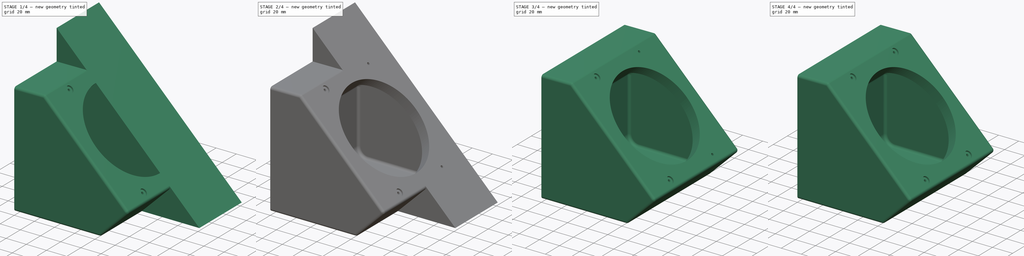
[diagram: build sequence overview — one tinted view per stage of 4, left to right]
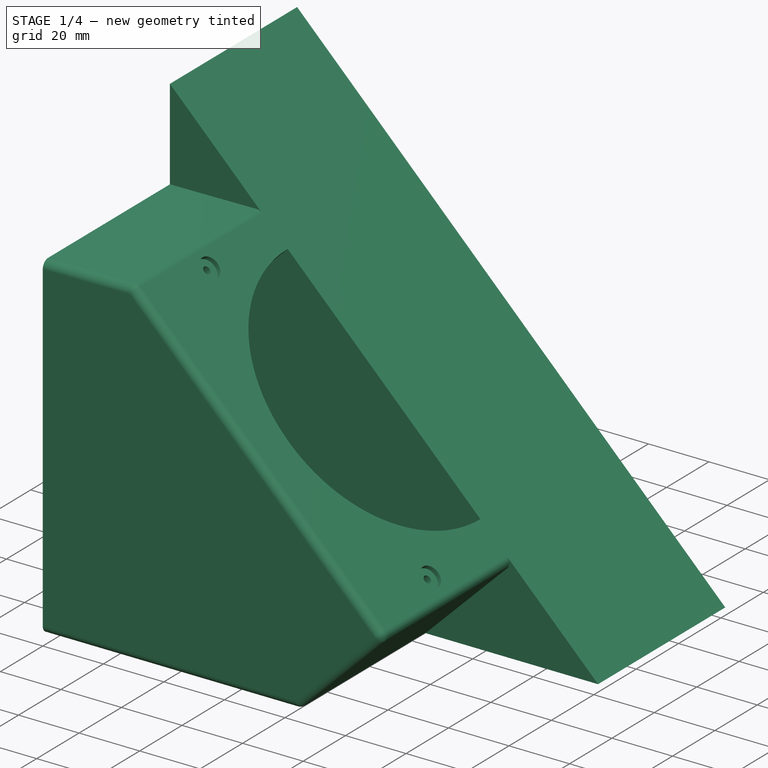
[diagram: stage 1 of 4 — iso view after this stage's code; geometry added in this stage tinted green]
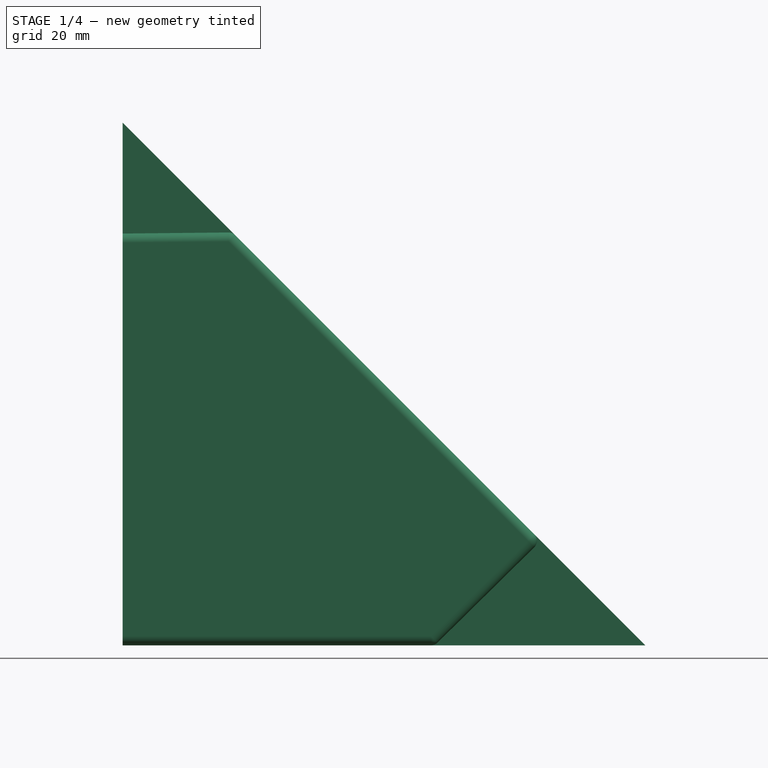
[diagram: stage 1 of 4 — front view after this stage's code; geometry added in this stage tinted green]
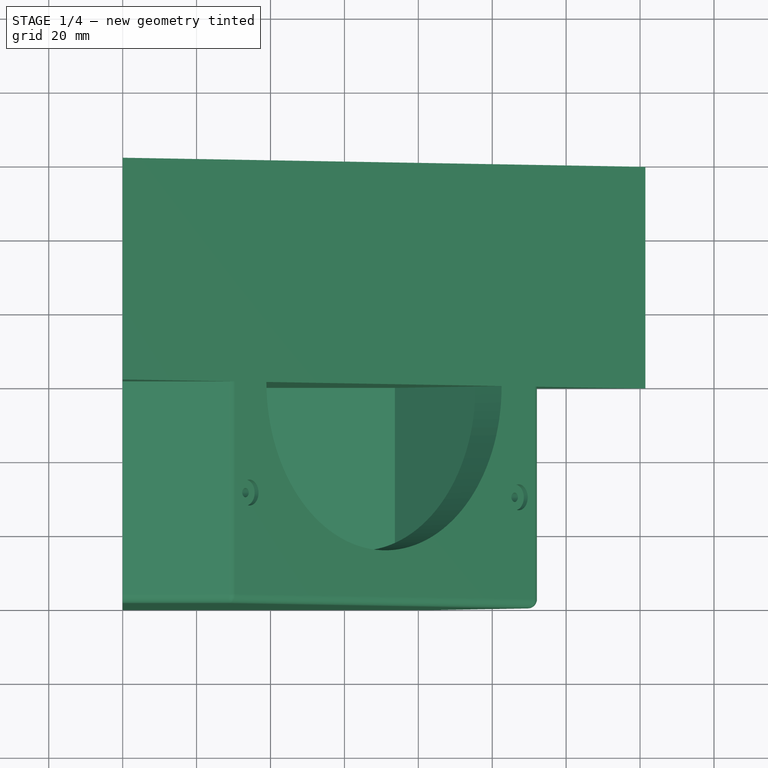
[diagram: stage 1 of 4 — top view after this stage's code; geometry added in this stage tinted green]
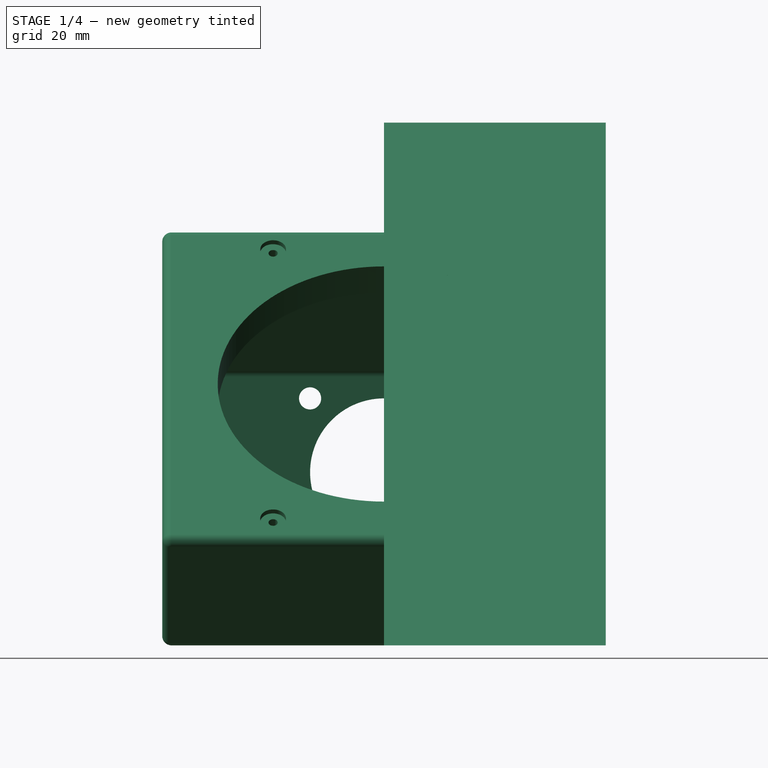
[diagram: stage 1 of 4 — right view after this stage's code; geometry added in this stage tinted green]
FCSTD DOCUMENT  (FreeCAD 0.21R33771 (Git))
Label: gmi20d
License: All rights reserved
LicenseURL: http://en.wikipedia.org/wiki/All_rights_reserved
objects: Sketcher::SketchObject×5, PartDesign::Pocket×4, PartDesign::Fillet×3, PartDesign::Chamfer×2, PartDesign::Pad×1, PartDesign::Body×1, Part::Feature×1, Part::Mirroring×1, Part::FeaturePython×1
note: 29 computed .brp shape members not serialized (recipe doc carries the construction recipe); baked Part::Feature solids carry a one-line shape summary decoded from their .brp

FEATURE [Sketcher::SketchObject] Sketch  label="outside"
  FullyConstrained = true
  MapMode = 5
  Placement = pos=(0,0,0) rot=(1,0,0;1.5708rad)
  Support = -> [XZ_Plane001]
  expr: Constraints[8] = .Constraints.fulfront / 2
  sketch-geometry (7):
    g0: LineSegment StartX=0 StartY=0 StartZ=0 EndX=0 EndY=141.421 EndZ=0
    g1: LineSegment StartX=0 StartY=141.421 StartZ=0 EndX=70.7107 EndY=70.7107 EndZ=0
    g2: LineSegment StartX=70.7107 StartY=70.7107 StartZ=0 EndX=141.421 EndY=0 EndZ=0
    g3: LineSegment StartX=70.7107 StartY=70.7107 StartZ=0 EndX=0 EndY=0 EndZ=0
    g4: LineSegment StartX=141.421 StartY=0 StartZ=0 EndX=70.7107 EndY=0 EndZ=0
    g5: LineSegment StartX=70.7107 StartY=0 StartZ=0 EndX=0 EndY=0 EndZ=0
    g6: LineSegment StartX=70.7107 StartY=70.7107 StartZ=0 EndX=70.7107 EndY=0 EndZ=0
  constraints (20):
    c: Coincident(g-1,g0)
    c: PointOnObject(g0,g-2)
    c: Coincident(g0,g1)
    c: PointOnObject(g2,g-1)
    c: Coincident(g2,g4)
    c: Coincident(g5,g0)
    c: Coincident(g1,g2)
    c: Distance(g1,g2) = 200  'fulfront'
    c: Distance(g2) = 100
    c: Coincident(g3,g1)
    c: Coincident(g3,g0)
    c: Distance(g3) = 100
    c: Coincident(g4,g5)
    c: DistanceX(g5,g5) = 70.7107
    c: Coincident(g6,g1)
    c: Coincident(g6,g4)
    c: Vertical(g6)
    c: Horizontal(g5)
    c: Parallel(g1,g2)
    c: Angle(g2,g4) = 0.785398  'angle'
FEATURE [PartDesign::Pad] Pad
  Direction = (0,-1,-2e-16)
  Length = 60
  Length2 = 10
  Placement = pos=(0,0,0) rot=(1,0,0;1.5708rad)
  Profile = -> Sketch
  ReferenceAxis = -> Sketch [N_Axis]
  Refine = true
  Reversed = true
  Type = 0
FEATURE [PartDesign::Body] Body
  Group = -> [Sketch,Pad,Sketch001,Pocket,Sketch002,Pocket001,Sketch003,Pocket002,Chamfer,Chamfer001,Fillet,Fillet001,Fillet002,Sketch004,Pocket003]
  Origin = -> Origin001
  Tip = -> Pocket003
FEATURE [Part::Feature] Pocket004
  Placement = pos=(0,0,0) rot=(1,0,0;1.5708rad)
  shape: bbox 112.1 x 60 x 111.7 mm, 45 faces (baked)
FEATURE [Part::Mirroring] Part__Mirroring  label="Pocket004 (Mirror #1)"
  Base = (0,0,0)
  Normal = (0,1,0)
  Source = -> Pocket004
FEATURE [Part::FeaturePython] Connect  # WARN: FeaturePython — macro-defined, semantics opaque (R4)
  Objects = -> [Pocket004,Part__Mirroring]
  Refine = true
  Tolerance = 0
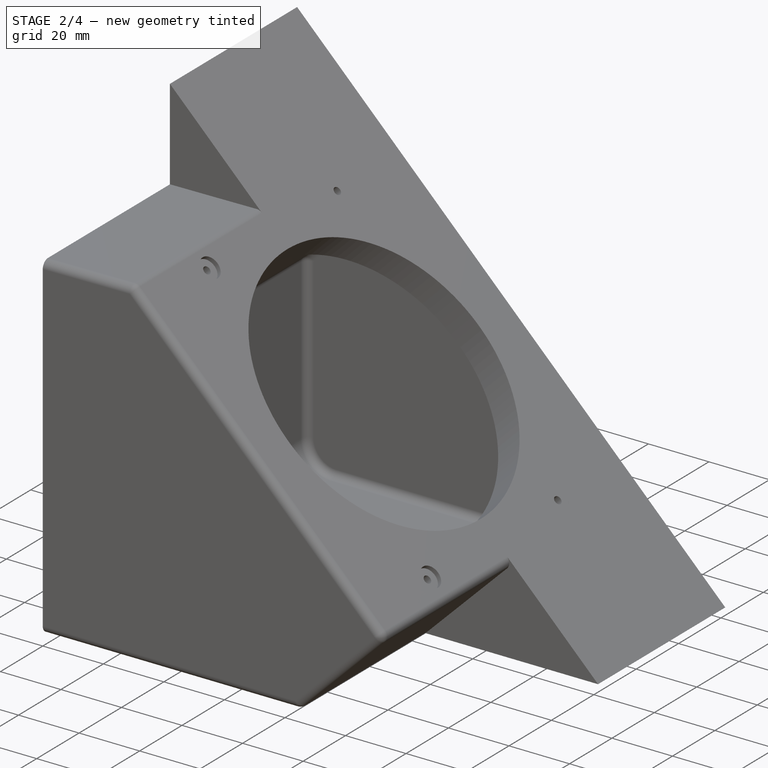
[diagram: stage 2 of 4 — iso view after this stage's code; geometry added in this stage tinted green]
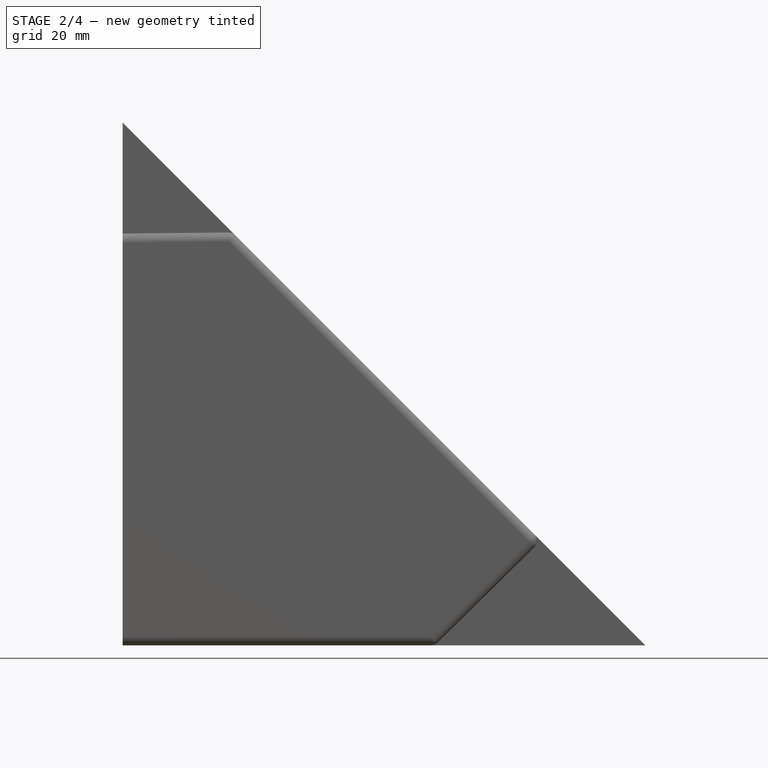
[diagram: stage 2 of 4 — front view after this stage's code; geometry added in this stage tinted green]
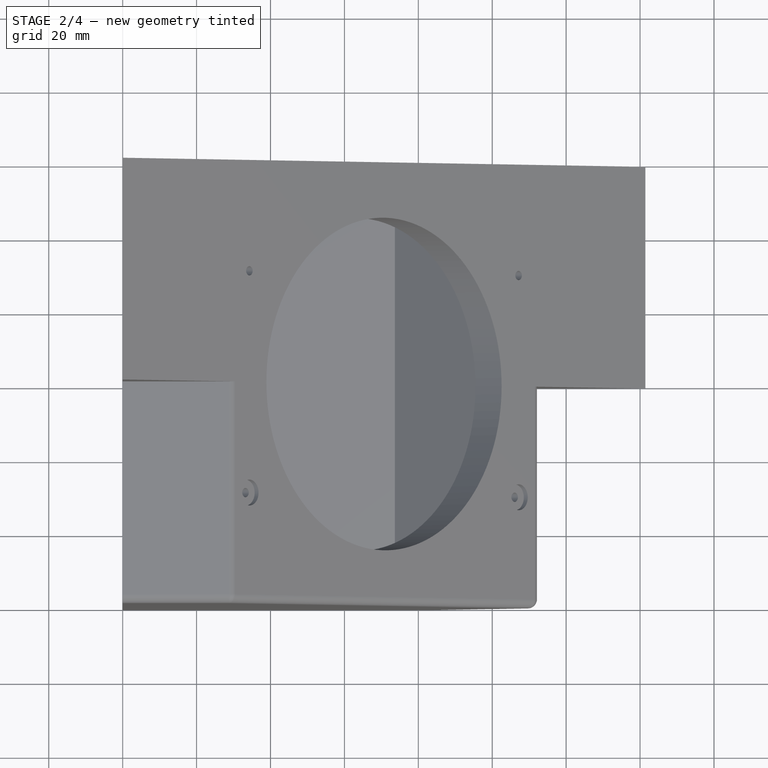
[diagram: stage 2 of 4 — top view after this stage's code; geometry added in this stage tinted green]
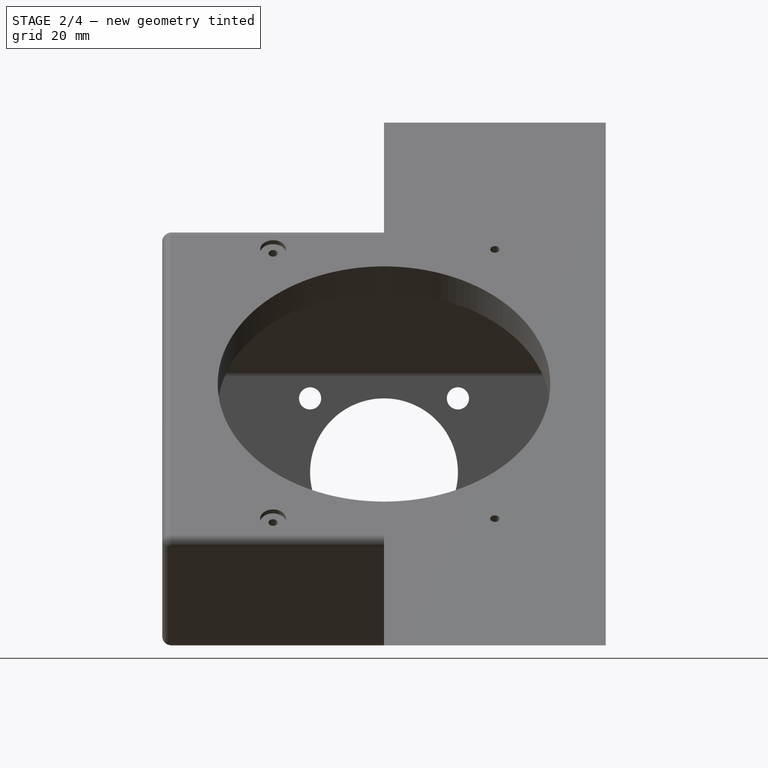
[diagram: stage 2 of 4 — right view after this stage's code; geometry added in this stage tinted green]
FEATURE [Sketcher::SketchObject] Sketch001  label="inside"
  ExternalGeometry = -> [Sketch]
  FullyConstrained = true
  MapMode = 5
  Placement = pos=(0,0,0) rot=(1,0,0;1.5708rad)
  Support = -> [XZ_Plane001]
  expr: Constraints[14] = .Constraints.wand
  expr: Constraints[19] = .Constraints.wand
  sketch-geometry (9):
    g0: LineSegment StartX=10 StartY=20 StartZ=0 EndX=10 EndY=73.6396 EndZ=0
    g1: LineSegment StartX=31.8198 StartY=95.4594 StartZ=0 EndX=95.4594 EndY=31.8198 EndZ=0
    g2: LineSegment StartX=73.6396 StartY=10 StartZ=0 EndX=20 EndY=10 EndZ=0
    g3: ArcOfCircle CenterX=20 CenterY=20 CenterZ=0 NormalX=0 NormalY=0 NormalZ=1 AngleXU=0 Radius=10 StartAngle=3.14159 EndAngle=4.71239
    g4: LineSegment StartX=20 StartY=10 StartZ=0 EndX=20 EndY=0 EndZ=0
    g5: LineSegment StartX=10 StartY=20 StartZ=0 EndX=0 EndY=20 EndZ=0
    g6: LineSegment StartX=31.8198 StartY=95.4594 StartZ=0 EndX=38.8909 EndY=102.53 EndZ=0
    g7: LineSegment StartX=10 StartY=73.6396 StartZ=0 EndX=31.8198 EndY=95.4594 EndZ=0
    g8: LineSegment StartX=95.4594 StartY=31.8198 StartZ=0 EndX=73.6396 EndY=10 EndZ=0
  constraints (28):
    c: Vertical(g0)
    c: Horizontal(g2)
    c: Parallel(g-3,g1)
    c: Angle(g1,g2) = 0.785398  'angle'
    c: Tangent(g0,g3) = 1.5708
    c: Tangent(g2,g3) = 1.5708
    c: Radius(g3) = 10
    c: Coincident(g4,g2)
    c: PointOnObject(g4,g-1)
    c: Vertical(g4)
    c: DistanceY(g4,g4) = 10  'wand'
    c: Coincident(g5,g0)
    c: PointOnObject(g5,g-2)
    c: Horizontal(g5)
    c: DistanceX(g5,g5) = 10
    c: Coincident(g6,g1)
    c: PointOnObject(g6,g-3)
    c: Distance(g-3) = 100
    c: Perpendicular(g6,g-3)
    c: Distance(g6) = 10
    c: Distance(g1) = 90
    c: Coincident(g7,g0)
    c: Coincident(g7,g1)
    c: Perpendicular(g7,g1)
    c: Coincident(g8,g1)
    c: Coincident(g8,g2)
    c: Perpendicular(g8,g1)
    c: Equal(g8,g7)
FEATURE [PartDesign::Pocket] Pocket
  BaseFeature = -> Pad
  Direction = (0,1,2e-16)
  Length = 50
  Length2 = 5
  Placement = pos=(0,0,0) rot=(1,0,0;1.5708rad)
  Profile = -> Sketch001
  ReferenceAxis = -> Sketch001 [N_Axis]
  Refine = true
  Type = 0
FEATURE [Sketcher::SketchObject] Sketch002  label="devhole"
  FullyConstrained = true
  MapMode = 5
  Placement = pos=(70.7107,-2.11e-14,70.7107) rot=(0.382683,0,0.92388;3.14159rad)
  Support = -> [Pocket]
  expr: Constraints[5] = .Constraints.di
  expr: Constraints[6] = .Constraints.wb
  expr: Constraints[7] = .Constraints.wa
  sketch-geometry (3):
    g0: Circle CenterX=0 CenterY=0 CenterZ=0 NormalX=0 NormalY=0 NormalZ=1 AngleXU=0 Radius=45
    g1: Circle CenterX=51.5 CenterY=-30 CenterZ=0 NormalX=0 NormalY=0 NormalZ=1 AngleXU=0 Radius=1.25
    g2: Circle CenterX=-51.5 CenterY=-30 CenterZ=0 NormalX=0 NormalY=0 NormalZ=1 AngleXU=0 Radius=1.25
  constraints (8):
    c: Coincident(g0,g-1)
    c: Diameter(g0) = 90
    c: DistanceX(g0,g1) = 51.5  'wb'
    c: DistanceY(g1,g0) = 30  'wa'
    c: Diameter(g1) = 2.5  'di'
    c: Diameter(g2) = 2.5
    c: DistanceX(g2,g0) = 51.5
    c: DistanceY(g2,g0) = 30
FEATURE [PartDesign::Pocket] Pocket001
  BaseFeature = -> Pocket
  Direction = (-0.707107,2e-16,-0.707107)
  Length = 30
  Length2 = 5
  Placement = pos=(0,0,0) rot=(1,0,0;1.5708rad)
  Profile = -> Sketch002
  ReferenceAxis = -> Sketch002 [N_Axis]
  Refine = true
  Type = 0
FEATURE [Sketcher::SketchObject] Sketch003  label="backhole"
  ExternalGeometry = -> [Sketch001]
  FullyConstrained = true
  MapMode = 5
  Placement = pos=(0,0,0) rot=(0.57735,0.57735,0.57735;2.0944rad)
  Support = -> [YZ_Plane001]
  expr: Constraints[10] = .Constraints.wd
  expr: Constraints[11] = .Constraints.wd
  expr: Constraints[4] = .Constraints.length / 2
  expr: Constraints[6] = .Constraints.ds
  expr: Constraints[9] = .Constraints.wd
  sketch-geometry (3):
    g0: Circle CenterX=0 CenterY=46.8198 CenterZ=0 NormalX=0 NormalY=0 NormalZ=1 AngleXU=0 Radius=20
    g1: Circle CenterX=20 CenterY=66.8198 CenterZ=0 NormalX=0 NormalY=0 NormalZ=1 AngleXU=0 Radius=3
    g2: Circle CenterX=20 CenterY=26.8198 CenterZ=0 NormalX=0 NormalY=0 NormalZ=1 AngleXU=0 Radius=3
  constraints (12):
    c: PointOnObject(g0,g-2)
    c: DistanceY(g-3,g-3) = 53.6396  'length'
    c: DistanceX(g-3,g-3) = 0
    c: DistanceY(g-3) = 20
    c: DistanceY(g-3,g0) = 26.8198
    c: Diameter(g1) = 6  'ds'
    c: Diameter(g2) = 6
    c: Radius(g0) = 20  'rad'
    c: DistanceX(g-1,g1) = 20  'wd'
    c: DistanceX(g-1,g2) = 20
    c: DistanceY(g2,g0) = 20
    c: DistanceY(g0,g1) = 20
FEATURE [PartDesign::Pocket] Pocket002
  BaseFeature = -> Pocket001
  Direction = (-1,2e-16,-3e-16)
  Length = 10
  Length2 = 5
  Placement = pos=(0,0,0) rot=(1,0,0;1.5708rad)
  Profile = -> Sketch003
  ReferenceAxis = -> Sketch003 [N_Axis]
  Refine = true
  Reversed = true
  Type = 0
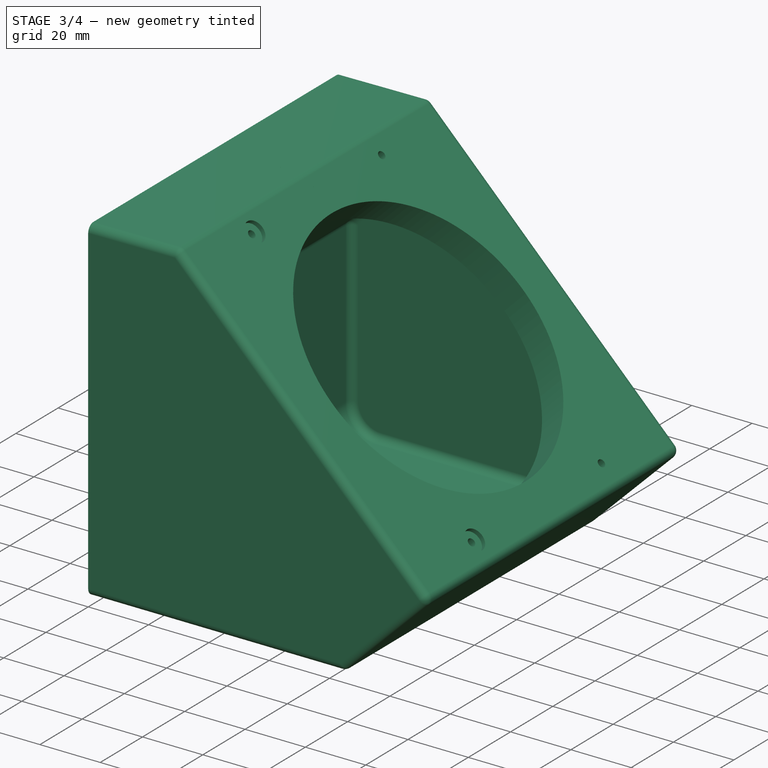
[diagram: stage 3 of 4 — iso view after this stage's code; geometry added in this stage tinted green]
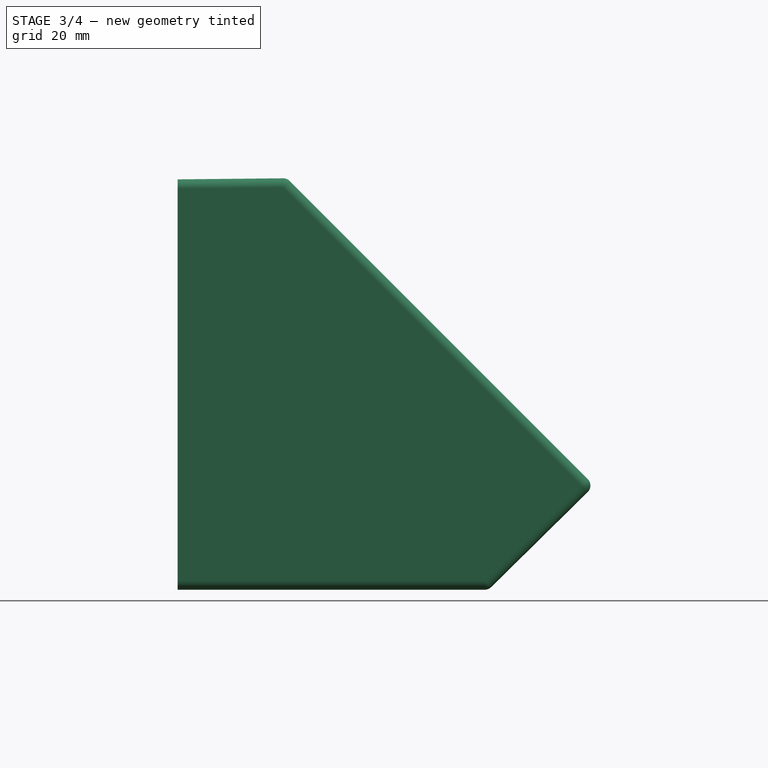
[diagram: stage 3 of 4 — front view after this stage's code; geometry added in this stage tinted green]
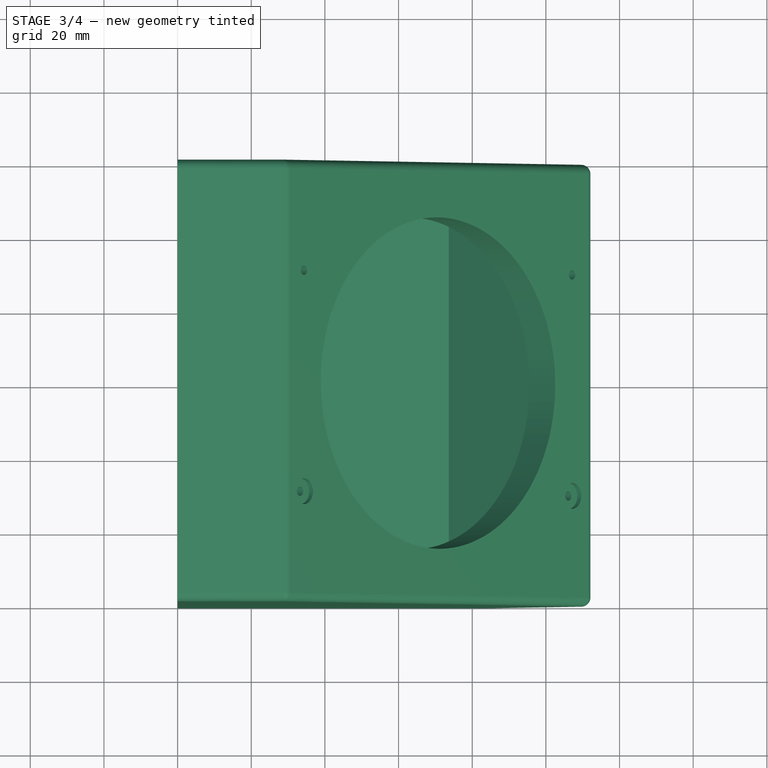
[diagram: stage 3 of 4 — top view after this stage's code; geometry added in this stage tinted green]
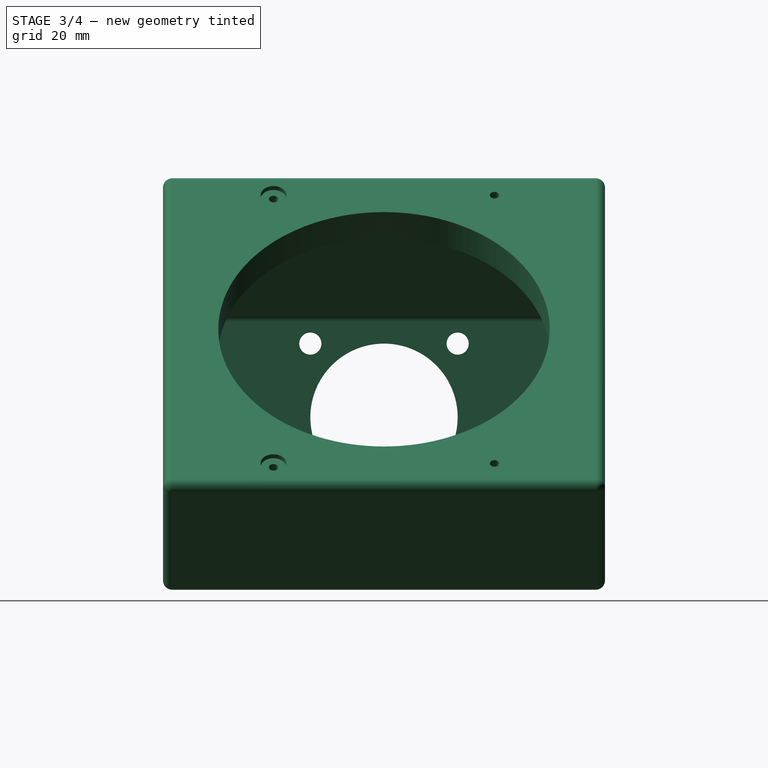
[diagram: stage 3 of 4 — right view after this stage's code; geometry added in this stage tinted green]
FEATURE [PartDesign::Chamfer] Chamfer
  Angle = 45
  Base = -> Pocket002 [Edge5]
  BaseFeature = -> Pocket002
  ChamferType = 1
  FlipDirection = false
  Placement = pos=(0,0,0) rot=(1,0,0;1.5708rad)
  Refine = true
  Size = 30
  Size2 = 42
  SupportTransform = false
  UseAllEdges = false
FEATURE [PartDesign::Chamfer] Chamfer001
  Angle = 45
  Base = -> Chamfer [Edge23]
  BaseFeature = -> Chamfer
  ChamferType = 1
  FlipDirection = false
  Placement = pos=(0,0,0) rot=(1,0,0;1.5708rad)
  Refine = true
  Size = 57
  Size2 = 40
  SupportTransform = false
  UseAllEdges = false
FEATURE [PartDesign::Fillet] Fillet
  Base = -> Chamfer001 [Edge5,Edge18,Edge4,Edge10,Edge2,Edge7,Edge1]
  BaseFeature = -> Chamfer001
  Placement = pos=(0,0,0) rot=(1,0,0;1.5708rad)
  Radius = 2.5
  Refine = true
  SupportTransform = false
  UseAllEdges = false
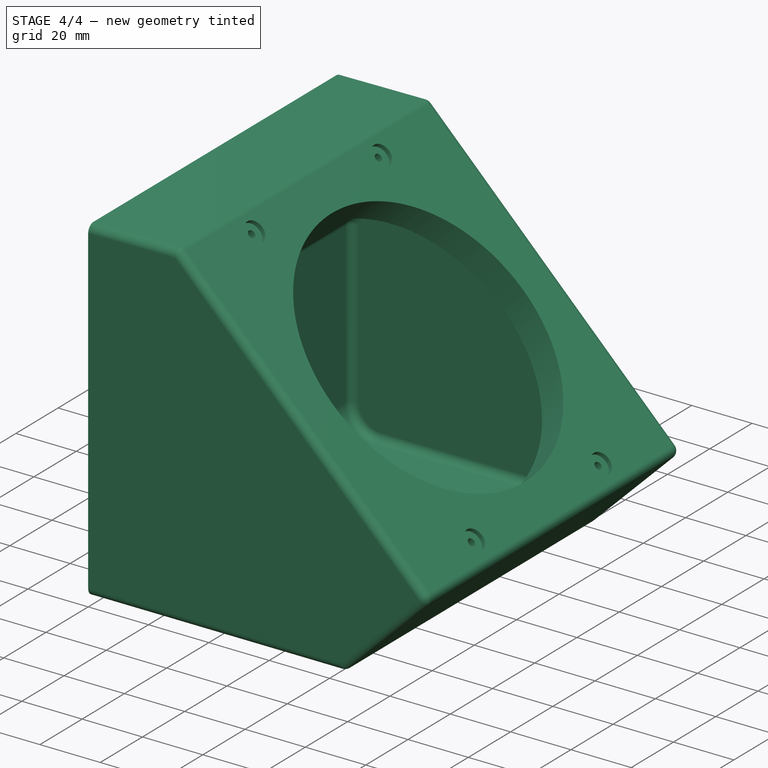
[diagram: stage 4 of 4 — iso view after this stage's code; geometry added in this stage tinted green]
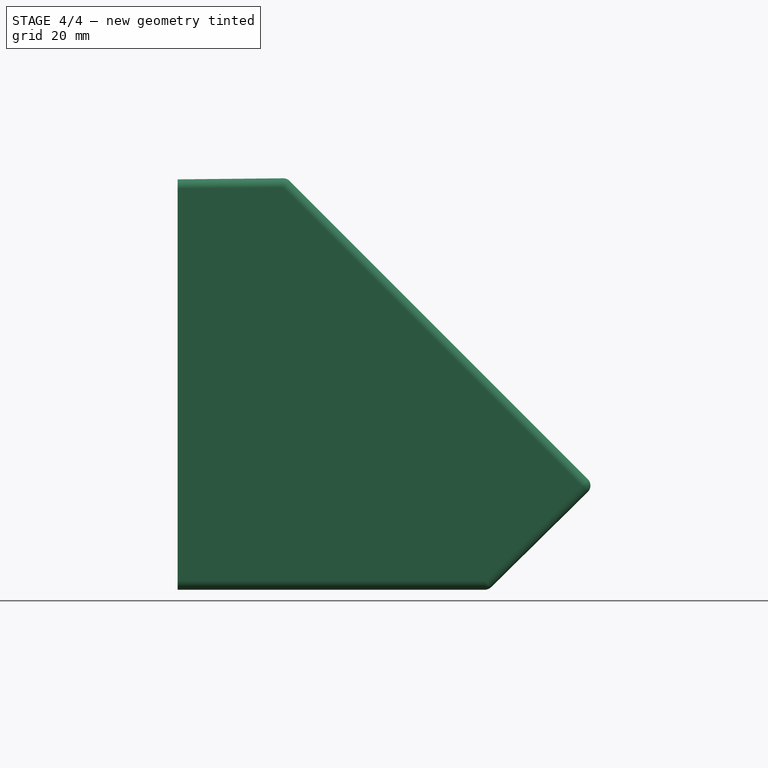
[diagram: stage 4 of 4 — front view after this stage's code; geometry added in this stage tinted green]
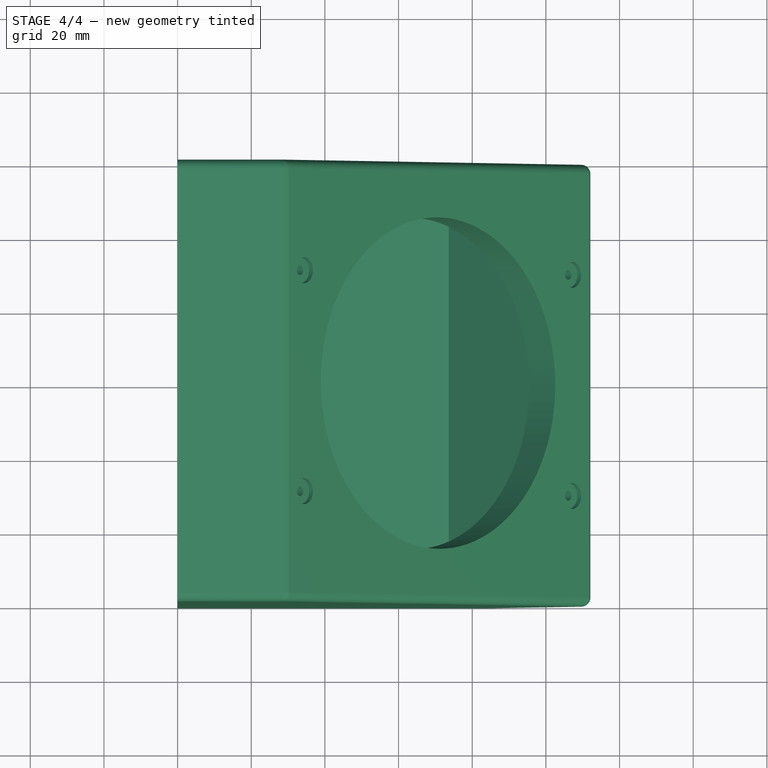
[diagram: stage 4 of 4 — top view after this stage's code; geometry added in this stage tinted green]
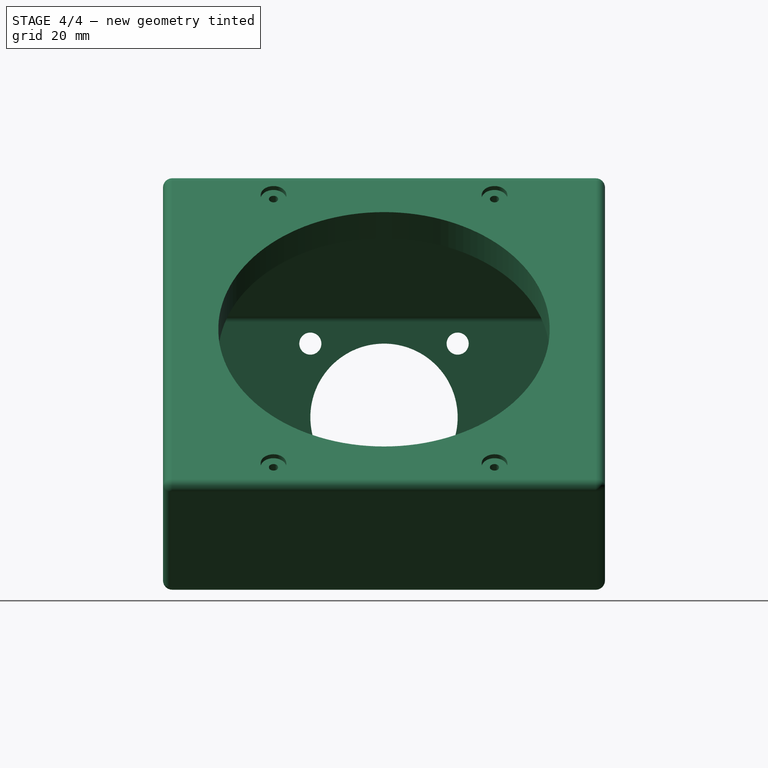
[diagram: stage 4 of 4 — right view after this stage's code; geometry added in this stage tinted green]
FEATURE [PartDesign::Fillet] Fillet001
  Base = -> Fillet [Face31]
  BaseFeature = -> Fillet
  Placement = pos=(0,0,0) rot=(1,0,0;1.5708rad)
  Radius = 2.5
  Refine = true
  SupportTransform = false
  UseAllEdges = false
FEATURE [PartDesign::Fillet] Fillet002
  Base = -> Fillet001 [Edge1]
  BaseFeature = -> Fillet001
  Placement = pos=(0,0,0) rot=(1,0,0;1.5708rad)
  Radius = 2.5
  Refine = true
  SupportTransform = false
  UseAllEdges = false
FEATURE [Sketcher::SketchObject] Sketch004
  ExternalGeometry = -> [Fillet002]
  FullyConstrained = false
  MapMode = 5
  Placement = pos=(70.7107,-2.11e-14,70.7107) rot=(0.382683,0,0.92388;3.14159rad)
  Support = -> [Fillet002]
  expr: Constraints[2] = .Constraints.df
  sketch-geometry (2):
    g0: Circle CenterX=-51.4986 CenterY=-30.013 CenterZ=0 NormalX=0 NormalY=0 NormalZ=1 AngleXU=0 Radius=3.5
    g1: Circle CenterX=51.5 CenterY=-30 CenterZ=0 NormalX=0 NormalY=0 NormalZ=1 AngleXU=0 Radius=3.5
  constraints (3):
    c: Coincident(g1,g-4)
    c: Diameter(g1) = 7  'df'
    c: Diameter(g0) = 7
FEATURE [PartDesign::Pocket] Pocket003
  BaseFeature = -> Fillet002
  Direction = (-0.707107,2e-16,-0.707107)
  Length = 1.5
  Length2 = 5
  Placement = pos=(0,0,0) rot=(1,0,0;1.5708rad)
  Profile = -> Sketch004
  ReferenceAxis = -> Sketch004 [N_Axis]
  Refine = true
  Type = 0
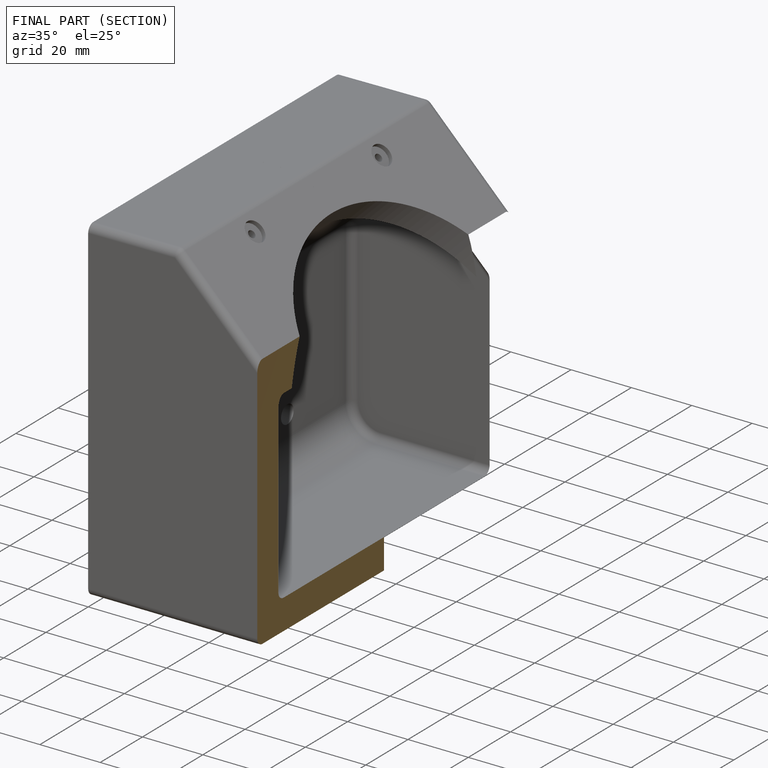
[diagram: finished part — half-section view (interior)]
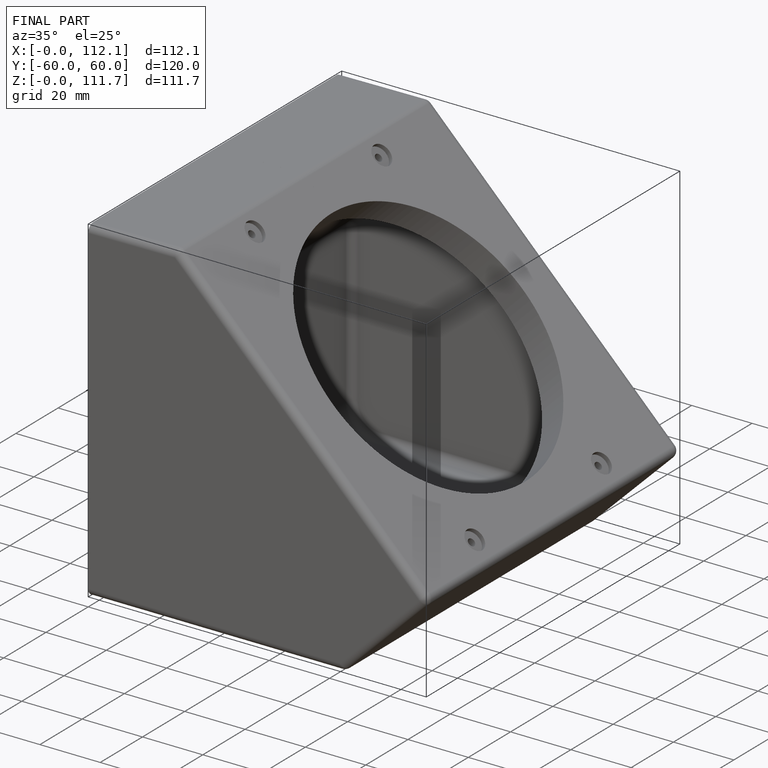
[diagram: finished part — iso view with bounding-box wireframe]
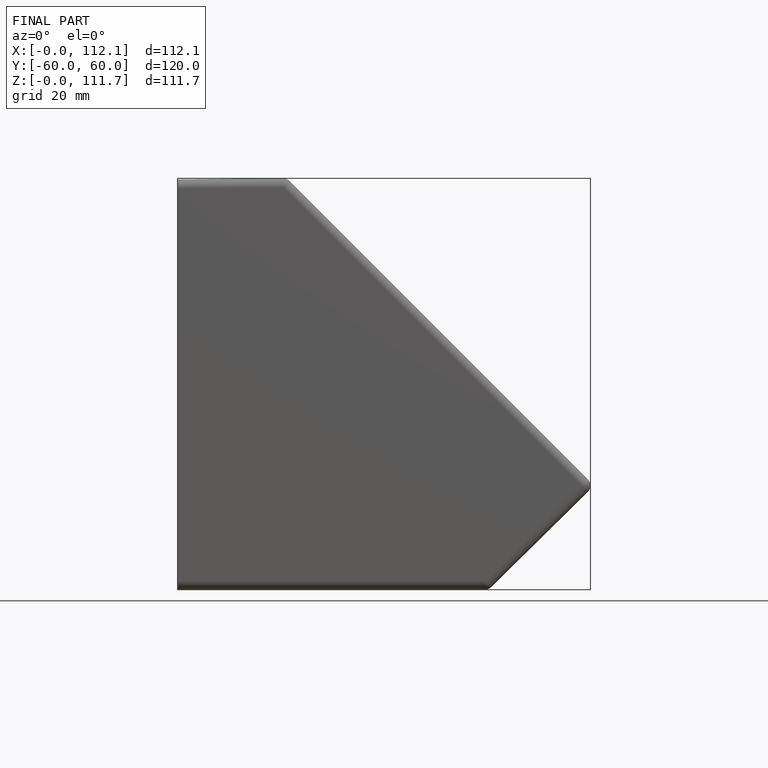
[diagram: finished part — front view with bounding-box wireframe]
